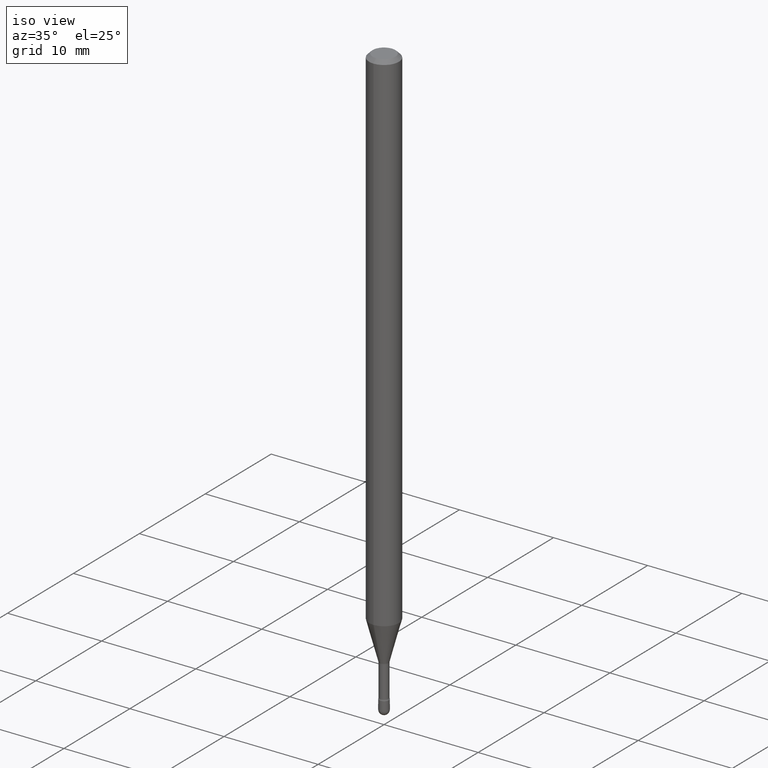
[diagram: clean part render]
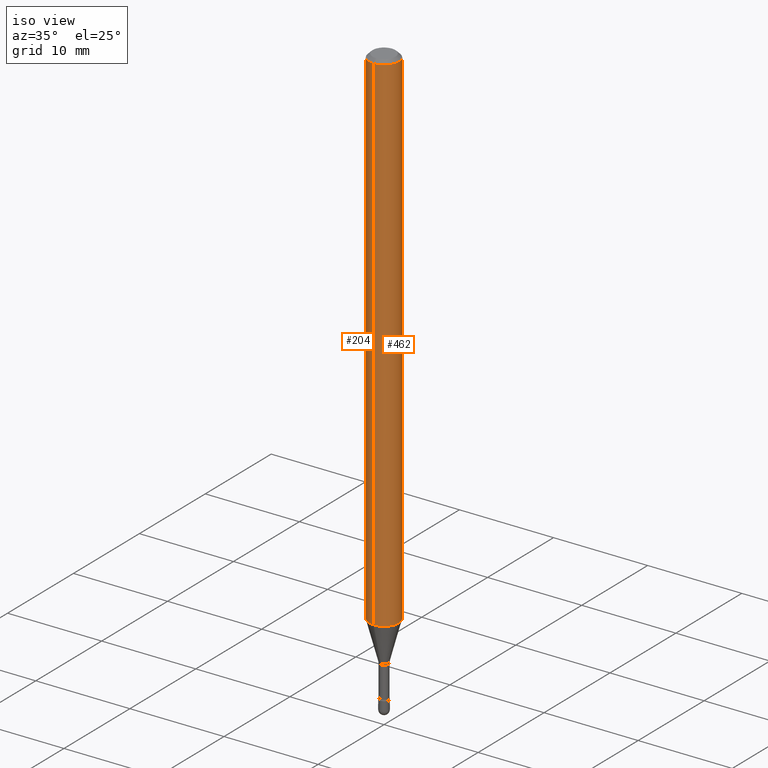
[diagram: same view with one multi-face feature highlighted, each face labeled with its STEP entity id]
A machine part, iso view. The highlighted faces form ONE feature: a constant-radius fillet chain: 2 tangent blend faces with common blend radius 1.5875 mm. The faces share edges in the B-rep.
Their STEP definitions:
[1] entity #204 (Cylinder):
#29 = CARTESIAN_POINT ( 'NONE',  ( 4.440892098501151740E-16, 0.06249999999999995143, -0.01500000000000030129 ) ) ;
#39 = VECTOR ( 'NONE', #388, 39.37007874015748143 ) ;
#68 = CARTESIAN_POINT ( 'NONE',  ( -4.364351673553916201E-16, -0.06250000000000000000, 6.962951384817635098E-16 ) ) ;
#94 = VERTEX_POINT ( 'NONE', #156 ) ;
#95 = CARTESIAN_POINT ( 'NONE',  ( 3.668133559875839332E-31, -5.237321750172445712E-17, -0.01500000000000008271 ) ) ;
#129 = AXIS2_PLACEMENT_3D ( 'NONE', #230, #269, #273 ) ;
#136 = VERTEX_POINT ( 'NONE', #29 ) ;
#152 = DIRECTION ( 'NONE',  ( -2.445422373250545997E-29, 3.491547833448277962E-15, 1.000000000000000000 ) ) ;
#156 = CARTESIAN_POINT ( 'NONE',  ( -4.364351673553395553E-16, -0.06250000000000748013, -2.136909379709240220 ) ) ;
#174 = DIRECTION ( 'NONE',  ( -2.445422373250546277E-29, 3.491547833448277568E-15, 1.000000000000000000 ) ) ;
#199 = ORIENTED_EDGE ( 'NONE', *, *, #222, .F. ) ;
#201 = DIRECTION ( 'NONE',  ( -6.982962677686265922E-15, -1.000000000000000000, 3.483106191921935554E-15 ) ) ;
#204 = ADVANCED_FACE ( 'NONE', ( #459 ), #387, .T. ) ;
#210 = EDGE_CURVE ( 'NONE', #94, #373, #428, .T. ) ;
#211 = CARTESIAN_POINT ( 'NONE',  ( 4.440892098500625669E-16, 0.06250000000000000000, 2.598516593007287152E-16 ) ) ;
#215 = DIRECTION ( 'NONE',  ( -2.445422373250545997E-29, 3.491547833448277962E-15, 1.000000000000000000 ) ) ;
#220 = ORIENTED_EDGE ( 'NONE', *, *, #532, .F. ) ;
#222 = EDGE_CURVE ( 'NONE', #248, #136, #348, .T. ) ;
#230 = CARTESIAN_POINT ( 'NONE',  ( 5.225646006749922120E-29, -7.461121314999102077E-15, -2.136909379709240220 ) ) ;
#233 = AXIS2_PLACEMENT_3D ( 'NONE', #95, #152, #201 ) ;
#248 = VERTEX_POINT ( 'NONE', #417 ) ;
#259 = CARTESIAN_POINT ( 'NONE',  ( -1.169113584055446105E-44, 1.669184350826100908E-30, 4.780733988912460139E-16 ) ) ;
#260 = CIRCLE ( 'NONE', #233, 0.06250000000000000000 ) ;
#268 = VECTOR ( 'NONE', #174, 39.37007874015748143 ) ;
#269 = DIRECTION ( 'NONE',  ( -2.445422373250545997E-29, 3.491547833448277962E-15, 1.000000000000000000 ) ) ;
#271 = CARTESIAN_POINT ( 'NONE',  ( -4.364351673553912750E-16, -0.06250000000000005551, -0.01499999999999986587 ) ) ;
#273 = DIRECTION ( 'NONE',  ( -6.982962677686265922E-15, -1.000000000000000000, 4.370956789862821150E-15 ) ) ;
#322 = EDGE_LOOP ( 'NONE', ( #199, #451, #333, #220 ) ) ;
#330 = EDGE_CURVE ( 'NONE', #248, #94, #495, .T. ) ;
#333 = ORIENTED_EDGE ( 'NONE', *, *, #210, .T. ) ;
#348 = LINE ( 'NONE', #211, #39 ) ;
#373 = VERTEX_POINT ( 'NONE', #271 ) ;
#387 = CYLINDRICAL_SURFACE ( 'NONE', #518, 0.06250000000000000000 ) ;
#388 = DIRECTION ( 'NONE',  ( -2.445422373250546277E-29, 3.491547833448277568E-15, 1.000000000000000000 ) ) ;
#417 = CARTESIAN_POINT ( 'NONE',  ( 4.440892098501145824E-16, 0.06249999999999251987, -2.136909379709240664 ) ) ;
#428 = LINE ( 'NONE', #68, #268 ) ;
#451 = ORIENTED_EDGE ( 'NONE', *, *, #330, .T. ) ;
#459 = FACE_OUTER_BOUND ( 'NONE', #322, .T. ) ;
#495 = CIRCLE ( 'NONE', #129, 0.06250000000000000000 ) ;
#504 = DIRECTION ( 'NONE',  ( -6.982962677686265922E-15, -1.000000000000000000, 3.491547833448278751E-15 ) ) ;
#518 = AXIS2_PLACEMENT_3D ( 'NONE', #259, #215, #504 ) ;
#532 = EDGE_CURVE ( 'NONE', #136, #373, #260, .T. ) ;
[2] entity #462 (Cylinder):
#8 = DIRECTION ( 'NONE',  ( -2.445422373250545997E-29, 3.491547833448277962E-15, 1.000000000000000000 ) ) ;
#18 = AXIS2_PLACEMENT_3D ( 'NONE', #452, #54, #372 ) ;
#26 = CIRCLE ( 'NONE', #106, 0.06250000000000000000 ) ;
#29 = CARTESIAN_POINT ( 'NONE',  ( 4.440892098501151740E-16, 0.06249999999999995143, -0.01500000000000030129 ) ) ;
#33 = EDGE_CURVE ( 'NONE', #94, #248, #26, .T. ) ;
#39 = VECTOR ( 'NONE', #388, 39.37007874015748143 ) ;
#51 = ORIENTED_EDGE ( 'NONE', *, *, #210, .F. ) ;
#54 = DIRECTION ( 'NONE',  ( -2.445422373250545997E-29, 3.491547833448277962E-15, 1.000000000000000000 ) ) ;
#58 = DIRECTION ( 'NONE',  ( -6.982962677686265922E-15, -1.000000000000000000, 3.491547833448278751E-15 ) ) ;
#68 = CARTESIAN_POINT ( 'NONE',  ( -4.364351673553916201E-16, -0.06250000000000000000, 6.962951384817635098E-16 ) ) ;
#81 = EDGE_LOOP ( 'NONE', ( #481, #444, #153, #51 ) ) ;
#94 = VERTEX_POINT ( 'NONE', #156 ) ;
#106 = AXIS2_PLACEMENT_3D ( 'NONE', #288, #447, #113 ) ;
#113 = DIRECTION ( 'NONE',  ( -6.982962677686265922E-15, -1.000000000000000000, 4.370956789862821150E-15 ) ) ;
#136 = VERTEX_POINT ( 'NONE', #29 ) ;
#153 = ORIENTED_EDGE ( 'NONE', *, *, #561, .F. ) ;
#156 = CARTESIAN_POINT ( 'NONE',  ( -4.364351673553395553E-16, -0.06250000000000748013, -2.136909379709240220 ) ) ;
#174 = DIRECTION ( 'NONE',  ( -2.445422373250546277E-29, 3.491547833448277568E-15, 1.000000000000000000 ) ) ;
#210 = EDGE_CURVE ( 'NONE', #94, #373, #428, .T. ) ;
#211 = CARTESIAN_POINT ( 'NONE',  ( 4.440892098500625669E-16, 0.06250000000000000000, 2.598516593007287152E-16 ) ) ;
#222 = EDGE_CURVE ( 'NONE', #248, #136, #348, .T. ) ;
#248 = VERTEX_POINT ( 'NONE', #417 ) ;
#252 = AXIS2_PLACEMENT_3D ( 'NONE', #468, #8, #58 ) ;
#268 = VECTOR ( 'NONE', #174, 39.37007874015748143 ) ;
#271 = CARTESIAN_POINT ( 'NONE',  ( -4.364351673553912750E-16, -0.06250000000000005551, -0.01499999999999986587 ) ) ;
#288 = CARTESIAN_POINT ( 'NONE',  ( 5.225646006749922120E-29, -7.461121314999102077E-15, -2.136909379709240220 ) ) ;
#348 = LINE ( 'NONE', #211, #39 ) ;
#372 = DIRECTION ( 'NONE',  ( -6.982962677686265922E-15, -1.000000000000000000, 3.483106191921935554E-15 ) ) ;
#373 = VERTEX_POINT ( 'NONE', #271 ) ;
#388 = DIRECTION ( 'NONE',  ( -2.445422373250546277E-29, 3.491547833448277568E-15, 1.000000000000000000 ) ) ;
#394 = FACE_OUTER_BOUND ( 'NONE', #81, .T. ) ;
#417 = CARTESIAN_POINT ( 'NONE',  ( 4.440892098501145824E-16, 0.06249999999999251987, -2.136909379709240664 ) ) ;
#428 = LINE ( 'NONE', #68, #268 ) ;
#444 = ORIENTED_EDGE ( 'NONE', *, *, #222, .T. ) ;
#447 = DIRECTION ( 'NONE',  ( -2.445422373250545997E-29, 3.491547833448277962E-15, 1.000000000000000000 ) ) ;
#452 = CARTESIAN_POINT ( 'NONE',  ( 3.668133559875839332E-31, -5.237321750172445712E-17, -0.01500000000000008271 ) ) ;
#462 = ADVANCED_FACE ( 'NONE', ( #394 ), #554, .T. ) ;
#468 = CARTESIAN_POINT ( 'NONE',  ( -1.169113584055446105E-44, 1.669184350826100908E-30, 4.780733988912460139E-16 ) ) ;
#481 = ORIENTED_EDGE ( 'NONE', *, *, #33, .T. ) ;
#487 = CIRCLE ( 'NONE', #18, 0.06250000000000000000 ) ;
#554 = CYLINDRICAL_SURFACE ( 'NONE', #252, 0.06250000000000000000 ) ;
#561 = EDGE_CURVE ( 'NONE', #373, #136, #487, .T. ) ;